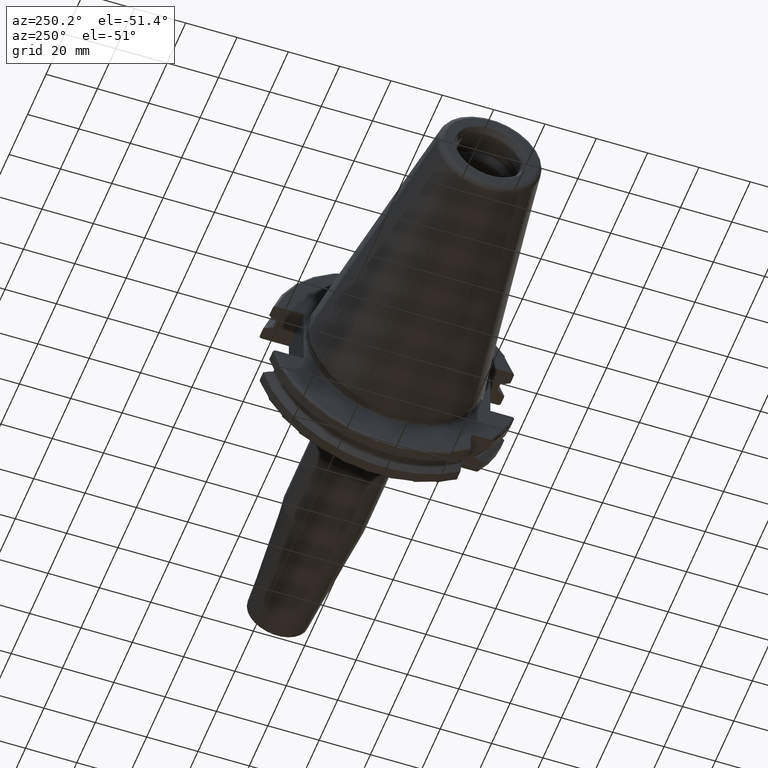
[diagram: clean part render]
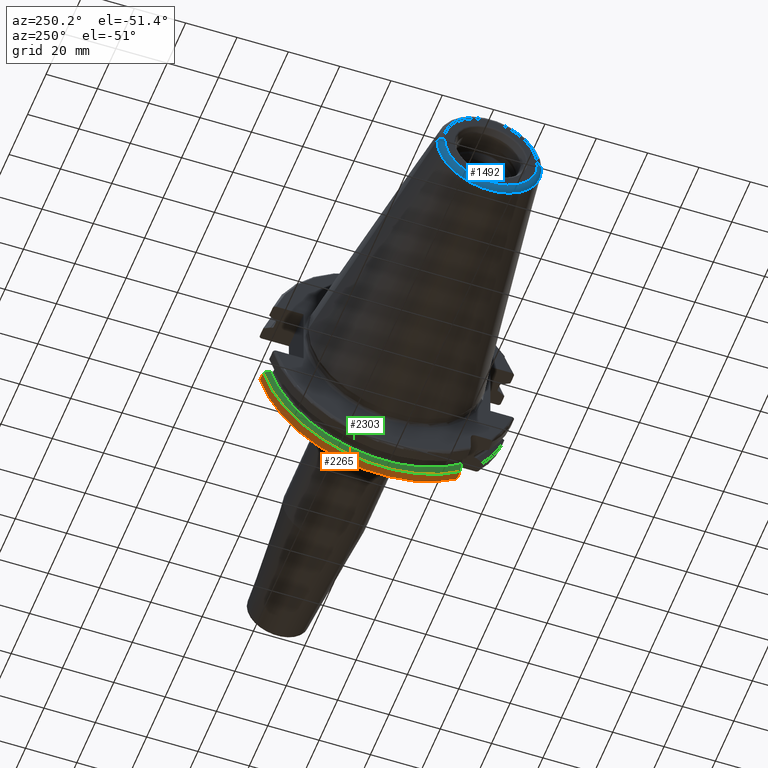
[diagram: same view with three faces highlighted in distinct colors, each labeled with its STEP entity id]
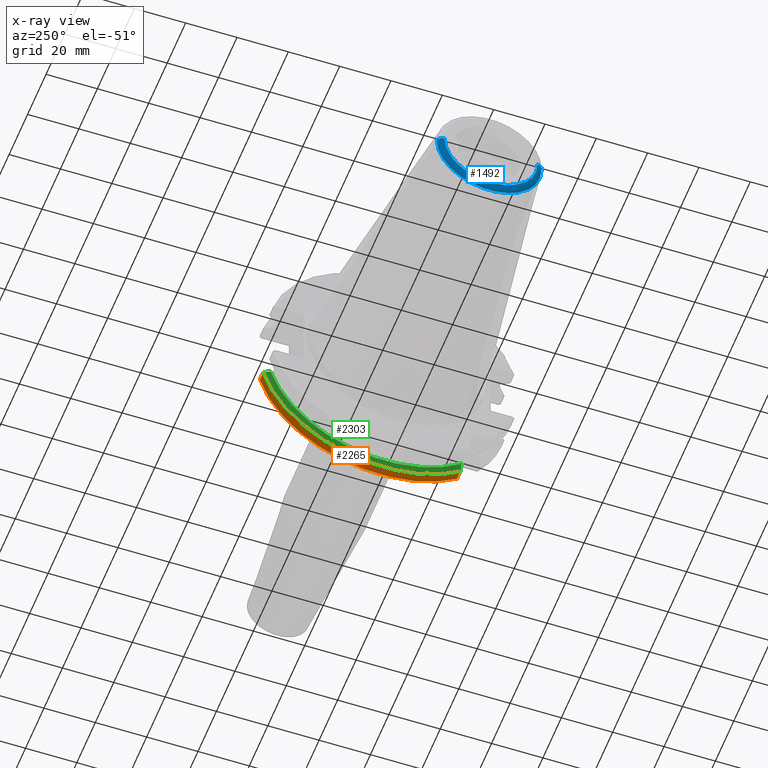
[diagram: x-ray of the same camera — body ghosted, the three highlighted faces saturated]
A machine part, auxiliary view with three faces highlighted in distinct colors.
The next image is the same camera in x-ray (body ghosted, the three faces saturated) — at least one of them is partly hidden behind the body in this view.
Their STEP definitions:

[orange] entity #2265 — the highlighted cylindrical surface (partial cylindrical patch) has radius 48.7375 mm, axis along (1, 0, 0).
#736=DIRECTION('',(1.E0,0.E0,0.E0));
#737=VECTOR('',#736,3.634621614173E0);
#738=CARTESIAN_POINT('',(1.441537838583E1,4.699929686974E1,-1.29E1));
#739=LINE('',#738,#737);
#740=CARTESIAN_POINT('',(1.441537838583E1,0.E0,0.E0));
#741=DIRECTION('',(1.E0,0.E0,0.E0));
#742=DIRECTION('',(0.E0,-6.124647345473E-1,-7.904979120376E-1));
#743=AXIS2_PLACEMENT_3D('',#740,#741,#742);
#745=DIRECTION('',(1.E0,0.E0,0.E0));
#746=VECTOR('',#745,3.634621614173E0);
#747=CARTESIAN_POINT('',(1.441537838583E1,-2.985E1,-3.852689198793E1));
#748=LINE('',#747,#746);
#749=CARTESIAN_POINT('',(1.805E1,0.E0,0.E0));
#750=DIRECTION('',(-1.E0,0.E0,0.E0));
#751=DIRECTION('',(0.E0,9.643354064066E-1,-2.646832521159E-1));
#752=AXIS2_PLACEMENT_3D('',#749,#750,#751);
#790=CARTESIAN_POINT('',(1.441537838583E1,4.699929686974E1,-1.29E1));
#802=CARTESIAN_POINT('',(1.441537838583E1,-2.985E1,-3.852689198793E1));
#1324=VERTEX_POINT('',#790);
#1374=CARTESIAN_POINT('',(1.805E1,4.699929686974E1,-1.29E1));
#1375=VERTEX_POINT('',#1374);
#1399=CARTESIAN_POINT('',(1.805E1,-2.985E1,-3.852689198793E1));
#1400=VERTEX_POINT('',#1399);
#1424=VERTEX_POINT('',#802);
#2252=CARTESIAN_POINT('',(-1.076325E2,0.E0,0.E0));
#2253=DIRECTION('',(1.E0,0.E0,0.E0));
#2254=DIRECTION('',(0.E0,-1.E0,0.E0));
#2255=AXIS2_PLACEMENT_3D('',#2252,#2253,#2254);
#2256=CYLINDRICAL_SURFACE('',#2255,4.87375E1);
#2257=ORIENTED_EDGE('',*,*,#1825,.F.);
#2259=ORIENTED_EDGE('',*,*,#2258,.F.);
#2260=ORIENTED_EDGE('',*,*,#1675,.T.);
#2262=ORIENTED_EDGE('',*,*,#2261,.F.);
#2263=EDGE_LOOP('',(#2257,#2259,#2260,#2262));
#2264=FACE_OUTER_BOUND('',#2263,.F.);
#2265=ADVANCED_FACE('',(#2264),#2256,.T.);
#744=CIRCLE('',#743,4.87375E1);
#753=CIRCLE('',#752,4.87375E1);
#1675=EDGE_CURVE('',#1424,#1400,#748,.T.);
#1825=EDGE_CURVE('',#1324,#1375,#739,.T.);
#2258=EDGE_CURVE('',#1424,#1324,#744,.T.);
#2261=EDGE_CURVE('',#1375,#1400,#753,.T.);

[blue] entity #1492 — the highlighted toroidal blend (fillet) surface has major radius 18.1614 mm and minor (blend) radius 2.25 mm.
#2=CARTESIAN_POINT('',(-1.016E2,0.E0,0.E0));
#3=DIRECTION('',(-1.E0,0.E0,0.E0));
#4=DIRECTION('',(0.E0,1.E0,0.E0));
#5=AXIS2_PLACEMENT_3D('',#2,#3,#4);
#22=CARTESIAN_POINT('',(-9.935E1,1.816144700117E1,0.E0));
#23=DIRECTION('',(0.E0,0.E0,1.E0));
#24=DIRECTION('',(-1.443186691705E-1,9.895312636440E-1,0.E0));
#25=AXIS2_PLACEMENT_3D('',#22,#23,#24);
#27=CARTESIAN_POINT('',(-9.935E1,-1.816144700117E1,0.E0));
#28=DIRECTION('',(0.E0,0.E0,-1.E0));
#29=DIRECTION('',(-1.443186691705E-1,-9.895312636440E-1,0.E0));
#30=AXIS2_PLACEMENT_3D('',#27,#28,#29);
#32=CARTESIAN_POINT('',(-9.967471700563E1,0.E0,0.E0));
#33=DIRECTION('',(-1.E0,0.E0,0.E0));
#34=DIRECTION('',(0.E0,1.E0,0.E0));
#35=AXIS2_PLACEMENT_3D('',#32,#33,#34);
#1206=CARTESIAN_POINT('',(-9.967471700563E1,2.038789234437E1,0.E0));
#1207=CARTESIAN_POINT('',(-1.016E2,1.816144700117E1,0.E0));
#1208=VERTEX_POINT('',#1206);
#1209=VERTEX_POINT('',#1207);
#1210=CARTESIAN_POINT('',(-9.967471700563E1,-2.038789234437E1,0.E0));
#1211=CARTESIAN_POINT('',(-1.016E2,-1.816144700117E1,0.E0));
#1212=VERTEX_POINT('',#1210);
#1213=VERTEX_POINT('',#1211);
#1478=CARTESIAN_POINT('',(-9.935E1,0.E0,0.E0));
#1479=DIRECTION('',(1.E0,0.E0,0.E0));
#1480=DIRECTION('',(0.E0,-1.E0,0.E0));
#1481=AXIS2_PLACEMENT_3D('',#1478,#1479,#1480);
#1482=TOROIDAL_SURFACE('',#1481,1.816144700117E1,2.25E0);
#1484=ORIENTED_EDGE('',*,*,#1483,.T.);
#1485=ORIENTED_EDGE('',*,*,#1465,.T.);
#1487=ORIENTED_EDGE('',*,*,#1486,.F.);
#1489=ORIENTED_EDGE('',*,*,#1488,.F.);
#1490=EDGE_LOOP('',(#1484,#1485,#1487,#1489));
#1491=FACE_OUTER_BOUND('',#1490,.F.);
#1492=ADVANCED_FACE('',(#1491),#1482,.T.);
#6=CIRCLE('',#5,1.816144700117E1);
#26=CIRCLE('',#25,2.25E0);
#31=CIRCLE('',#30,2.25E0);
#36=CIRCLE('',#35,2.038789234437E1);
#1465=EDGE_CURVE('',#1209,#1213,#6,.T.);
#1483=EDGE_CURVE('',#1208,#1209,#26,.T.);
#1486=EDGE_CURVE('',#1212,#1213,#31,.T.);
#1488=EDGE_CURVE('',#1208,#1212,#36,.T.);

[green] entity #2303 — the highlighted conical surface has half-angle 60 deg.
#740=CARTESIAN_POINT('',(1.441537838583E1,0.E0,0.E0));
#741=DIRECTION('',(1.E0,0.E0,0.E0));
#742=DIRECTION('',(0.E0,-6.124647345473E-1,-7.904979120376E-1));
#743=AXIS2_PLACEMENT_3D('',#740,#741,#742);
#785=CARTESIAN_POINT('',(1.30875E1,4.460981716077E1,-1.29E1));
#786=CARTESIAN_POINT('',(1.323171622645E1,4.486984125009E1,-1.29E1));
#787=CARTESIAN_POINT('',(1.352236645045E1,4.539353719098E1,-1.29E1));
#788=CARTESIAN_POINT('',(1.396495664446E1,4.618996220278E1,-1.29E1));
#789=CARTESIAN_POINT('',(1.426449561388E1,4.672829507383E1,-1.29E1));
#790=CARTESIAN_POINT('',(1.441537838583E1,4.699929686974E1,-1.29E1));
#792=CARTESIAN_POINT('',(1.30875E1,0.E0,0.E0));
#793=DIRECTION('',(-1.E0,0.E0,0.E0));
#794=DIRECTION('',(0.E0,9.606411165078E-1,-2.777924499957E-1));
#795=AXIS2_PLACEMENT_3D('',#792,#793,#794);
#797=CARTESIAN_POINT('',(1.30875E1,-2.985E1,-3.557278857662E1));
#798=CARTESIAN_POINT('',(1.322720354061E1,-2.985E1,-3.588866659244E1));
#799=CARTESIAN_POINT('',(1.351179500938E1,-2.985E1,-3.652866450573E1));
#800=CARTESIAN_POINT('',(1.395393296765E1,-2.985E1,-3.751242476101E1));
#801=CARTESIAN_POINT('',(1.425975326859E1,-2.985E1,-3.818590359837E1));
#802=CARTESIAN_POINT('',(1.441537838583E1,-2.985E1,-3.852689198793E1));
#1304=CARTESIAN_POINT('',(1.30875E1,4.460981716077E1,-1.29E1));
#1306=VERTEX_POINT('',#1304);
#1324=VERTEX_POINT('',#790);
#1391=CARTESIAN_POINT('',(1.30875E1,-2.985E1,-3.557278857662E1));
#1392=VERTEX_POINT('',#1391);
#1424=VERTEX_POINT('',#802);
#2292=CARTESIAN_POINT('',(1.375143919291E1,0.E0,0.E0));
#2293=DIRECTION('',(1.E0,0.E0,0.E0));
#2294=DIRECTION('',(0.E0,-1.E0,0.E0));
#2295=AXIS2_PLACEMENT_3D('',#2292,#2293,#2294);
#2296=CONICAL_SURFACE('',#2295,4.758752358474E1,6.E1);
#2297=ORIENTED_EDGE('',*,*,#1823,.F.);
#2298=ORIENTED_EDGE('',*,*,#2024,.T.);
#2299=ORIENTED_EDGE('',*,*,#1677,.T.);
#2300=ORIENTED_EDGE('',*,*,#2258,.T.);
#2301=EDGE_LOOP('',(#2297,#2298,#2299,#2300));
#2302=FACE_OUTER_BOUND('',#2301,.F.);
#2303=ADVANCED_FACE('',(#2302),#2296,.T.);
#744=CIRCLE('',#743,4.87375E1);
#791=B_SPLINE_CURVE_WITH_KNOTS('',3,(#785,#786,#787,#788,#789,#790),
.UNSPECIFIED.,.F.,.F.,(4,1,1,4),(0.E0,3.333333333333E-1,6.666666666667E-1,1.E0),
.UNSPECIFIED.);
#796=CIRCLE('',#795,4.643754716948E1);
#803=B_SPLINE_CURVE_WITH_KNOTS('',3,(#797,#798,#799,#800,#801,#802),
.UNSPECIFIED.,.F.,.F.,(4,1,1,4),(0.E0,3.333333333333E-1,6.666666666667E-1,1.E0),
.UNSPECIFIED.);
#1677=EDGE_CURVE('',#1392,#1424,#803,.T.);
#1823=EDGE_CURVE('',#1306,#1324,#791,.T.);
#2024=EDGE_CURVE('',#1306,#1392,#796,.T.);
#2258=EDGE_CURVE('',#1424,#1324,#744,.T.);